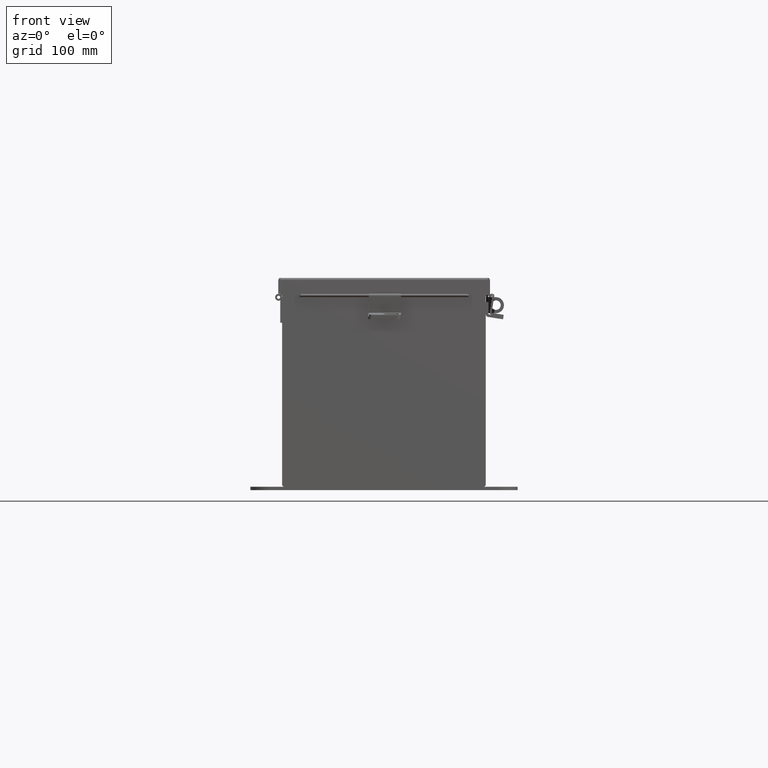
[diagram: clean part render]
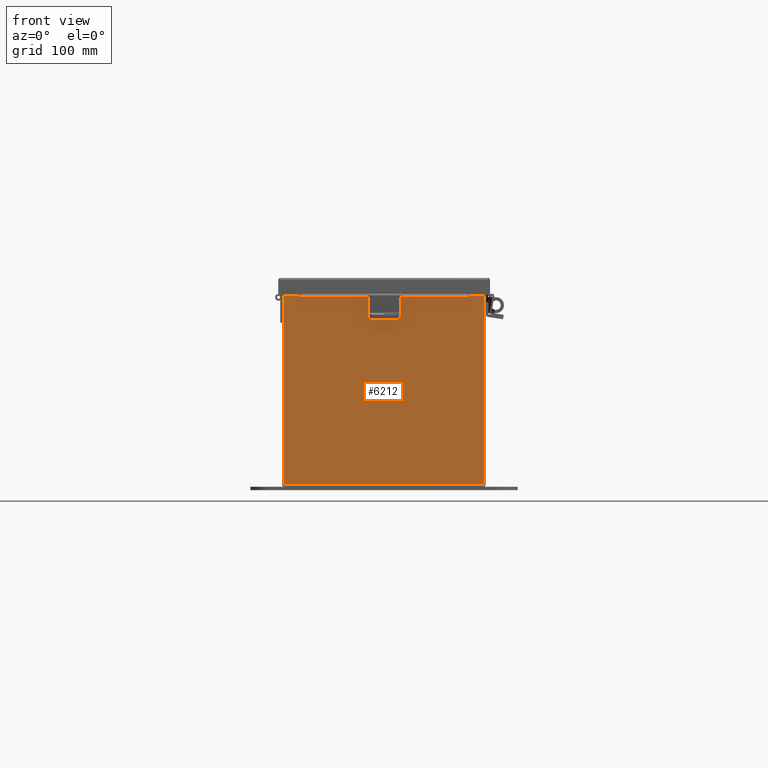
[diagram: same view with one face highlighted and labeled with its STEP entity id]
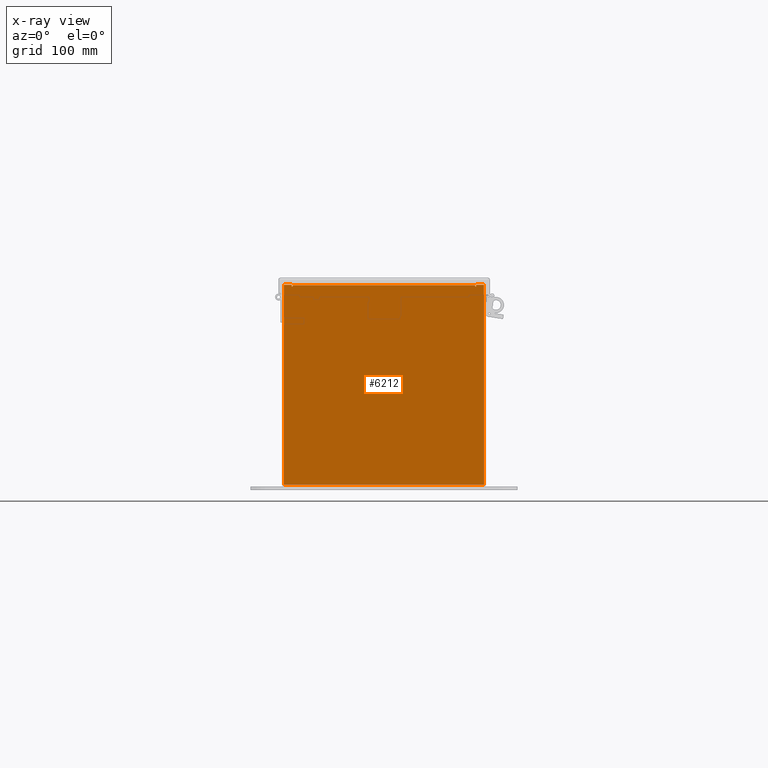
[diagram: x-ray of the same camera — body ghosted, the highlighted face saturated]
A machine part, front view. The second image highlights one B-rep face of the part: STEP entity #6212.
The next image is the same camera in x-ray: the body ghosted, the highlighted face saturated — about 0% of this face is hidden behind the body in this view.
In plain terms, the highlighted planar face has unit normal (-0, 1, -0).
Its self-contained STEP definition (entity closure, byte-faithful):
#259 = CARTESIAN_POINT ( 'NONE',  ( 3.925299999999996900, 0.0000000000000000000, -3.925299999999986700 ) ) ;
#387 = CARTESIAN_POINT ( 'NONE',  ( -3.582299999999989400, 0.0000000000000000000, 3.874949999999998300 ) ) ;
#931 = DIRECTION ( 'NONE',  ( 1.000000000000000000, 1.477079791840433000E-030, -0.0000000000000000000 ) ) ;
#1100 = ORIENTED_EDGE ( 'NONE', *, *, #13232, .T. ) ;
#1501 = DIRECTION ( 'NONE',  ( 1.477079791840433000E-030, 1.000000000000000000, -0.0000000000000000000 ) ) ;
#1957 = ORIENTED_EDGE ( 'NONE', *, *, #3026, .F. ) ;
#1984 = CARTESIAN_POINT ( 'NONE',  ( 3.582299999999996900, 0.0000000000000000000, 3.912299999999998800 ) ) ;
#2587 = VERTEX_POINT ( 'NONE', #20376 ) ;
#2649 = EDGE_CURVE ( 'NONE', #18350, #6282, #9252, .T. ) ;
#2871 = VERTEX_POINT ( 'NONE', #3181 ) ;
#2982 = DIRECTION ( 'NONE',  ( 0.0000000000000000000, 0.0000000000000000000, 1.000000000000000000 ) ) ;
#3026 = EDGE_CURVE ( 'NONE', #17498, #6600, #20576, .T. ) ;
#3055 = DIRECTION ( 'NONE',  ( 0.0000000000000000000, 0.0000000000000000000, 1.000000000000000000 ) ) ;
#3154 = LINE ( 'NONE', #19100, #9426 ) ;
#3181 = CARTESIAN_POINT ( 'NONE',  ( 3.925299999999996900, 0.0000000000000000000, 3.925299999999999600 ) ) ;
#3209 = ORIENTED_EDGE ( 'NONE', *, *, #4645, .F. ) ;
#3486 = CARTESIAN_POINT ( 'NONE',  ( -3.582300000000002300, 0.0000000000000000000, 0.0000000000000000000 ) ) ;
#3599 = CARTESIAN_POINT ( 'NONE',  ( -3.619650000000002300, 0.0000000000000000000, 3.925299999999999600 ) ) ;
#3700 = VERTEX_POINT ( 'NONE', #3599 ) ;
#4571 = CARTESIAN_POINT ( 'NONE',  ( -3.925300000000002700, 0.0000000000000000000, 3.925300000000000900 ) ) ;
#4645 = EDGE_CURVE ( 'NONE', #6600, #15451, #11816, .T. ) ;
#4977 = DIRECTION ( 'NONE',  ( 1.477079791840433000E-030, 1.000000000000000000, -0.0000000000000000000 ) ) ;
#5058 = ORIENTED_EDGE ( 'NONE', *, *, #2649, .T. ) ;
#5100 = EDGE_CURVE ( 'NONE', #20777, #5303, #22494, .T. ) ;
#5303 = VERTEX_POINT ( 'NONE', #19384 ) ;
#5400 = DIRECTION ( 'NONE',  ( -1.477079791840433000E-030, -1.000000000000000000, -0.0000000000000000000 ) ) ;
#5619 = CARTESIAN_POINT ( 'NONE',  ( 3.619650000000010200, 0.0000000000000000000, 3.874949999999999700 ) ) ;
#5748 = EDGE_CURVE ( 'NONE', #9156, #18350, #20648, .T. ) ;
#5824 = ORIENTED_EDGE ( 'NONE', *, *, #8067, .T. ) ;
#6212 = ADVANCED_FACE ( 'NONE', ( #16132 ), #20032, .F. ) ;
#6238 = DIRECTION ( 'NONE',  ( -2.170286390199978800E-014, -2.366582715663035400E-030, -1.000000000000000000 ) ) ;
#6282 = VERTEX_POINT ( 'NONE', #17332 ) ;
#6319 = CARTESIAN_POINT ( 'NONE',  ( -3.925300000000002700, 0.0000000000000000000, 3.925300000000000900 ) ) ;
#6464 = LINE ( 'NONE', #13924, #14012 ) ;
#6469 = ORIENTED_EDGE ( 'NONE', *, *, #7175, .F. ) ;
#6592 = DIRECTION ( 'NONE',  ( 0.0000000000000000000, 0.0000000000000000000, -1.000000000000000000 ) ) ;
#6600 = VERTEX_POINT ( 'NONE', #13343 ) ;
#6870 = ORIENTED_EDGE ( 'NONE', *, *, #5100, .F. ) ;
#7031 = CARTESIAN_POINT ( 'NONE',  ( 3.582299999999996900, 0.0000000000000000000, 1.311287036958846300E-014 ) ) ;
#7175 = EDGE_CURVE ( 'NONE', #14768, #17498, #10077, .T. ) ;
#7917 = VECTOR ( 'NONE', #3055, 39.37007874015748100 ) ;
#8067 = EDGE_CURVE ( 'NONE', #6282, #3700, #13505, .T. ) ;
#8270 = DIRECTION ( 'NONE',  ( -1.000000000000000000, -1.477079791840433000E-030, 0.0000000000000000000 ) ) ;
#8354 = LINE ( 'NONE', #3486, #16413 ) ;
#8856 = CARTESIAN_POINT ( 'NONE',  ( 3.619649999999998300, 0.0000000000000000000, 3.925300000000000900 ) ) ;
#9156 = VERTEX_POINT ( 'NONE', #259 ) ;
#9252 = LINE ( 'NONE', #20247, #7917 ) ;
#9426 = VECTOR ( 'NONE', #931, 39.37007874015748100 ) ;
#9815 = DIRECTION ( 'NONE',  ( 1.000000000000000000, 1.477079791840433000E-030, 0.0000000000000000000 ) ) ;
#9971 = CARTESIAN_POINT ( 'NONE',  ( -3.619650000000002300, 0.0000000000000000000, 0.0000000000000000000 ) ) ;
#10077 = LINE ( 'NONE', #14858, #15480 ) ;
#11816 = LINE ( 'NONE', #7031, #21247 ) ;
#12137 = CARTESIAN_POINT ( 'NONE',  ( -3.600974999999989400, 0.0000000000000000000, 3.874949999999998300 ) ) ;
#12799 = LINE ( 'NONE', #6319, #13346 ) ;
#13049 = ORIENTED_EDGE ( 'NONE', *, *, #5748, .T. ) ;
#13131 = LINE ( 'NONE', #9971, #19854 ) ;
#13232 = EDGE_CURVE ( 'NONE', #14768, #2871, #12799, .T. ) ;
#13343 = CARTESIAN_POINT ( 'NONE',  ( 3.582300000000009800, 0.0000000000000000000, 3.874949999999999700 ) ) ;
#13346 = VECTOR ( 'NONE', #9815, 39.37007874015748100 ) ;
#13505 = LINE ( 'NONE', #4571, #21841 ) ;
#13924 = CARTESIAN_POINT ( 'NONE',  ( 3.925299999999996900, 0.0000000000000000000, 3.925299999999999600 ) ) ;
#14012 = VECTOR ( 'NONE', #14132, 39.37007874015748100 ) ;
#14111 = CARTESIAN_POINT ( 'NONE',  ( -3.925300000000002700, 0.0000000000000000000, -3.925299999999999600 ) ) ;
#14132 = DIRECTION ( 'NONE',  ( 0.0000000000000000000, 0.0000000000000000000, -1.000000000000000000 ) ) ;
#14358 = DIRECTION ( 'NONE',  ( 0.0000000000000000000, 0.0000000000000000000, -1.000000000000000000 ) ) ;
#14431 = EDGE_CURVE ( 'NONE', #2587, #15451, #3154, .T. ) ;
#14473 = ORIENTED_EDGE ( 'NONE', *, *, #14431, .T. ) ;
#14607 = CARTESIAN_POINT ( 'NONE',  ( 0.0000000000000000000, 0.0000000000000000000, 0.0000000000000000000 ) ) ;
#14768 = VERTEX_POINT ( 'NONE', #8856 ) ;
#14804 = EDGE_CURVE ( 'NONE', #2587, #20777, #8354, .T. ) ;
#14858 = CARTESIAN_POINT ( 'NONE',  ( 3.619649999999913000, 0.0000000000000000000, -6.556435184794231400E-014 ) ) ;
#15147 = ORIENTED_EDGE ( 'NONE', *, *, #21455, .T. ) ;
#15370 = AXIS2_PLACEMENT_3D ( 'NONE', #14607, #5400, #22209 ) ;
#15451 = VERTEX_POINT ( 'NONE', #1984 ) ;
#15480 = VECTOR ( 'NONE', #6238, 39.37007874015748100 ) ;
#16132 = FACE_OUTER_BOUND ( 'NONE', #16302, .T. ) ;
#16203 = DIRECTION ( 'NONE',  ( 0.0000000000000000000, 0.0000000000000000000, 1.000000000000000000 ) ) ;
#16302 = EDGE_LOOP ( 'NONE', ( #19078, #6870, #16323, #14473, #3209, #1957, #6469, #1100, #15147, #13049, #5058, #5824 ) ) ;
#16323 = ORIENTED_EDGE ( 'NONE', *, *, #14804, .F. ) ;
#16413 = VECTOR ( 'NONE', #21098, 39.37007874015748100 ) ;
#16574 = CARTESIAN_POINT ( 'NONE',  ( -3.925300000000002700, 0.0000000000000000000, -3.925299999999999600 ) ) ;
#17332 = CARTESIAN_POINT ( 'NONE',  ( -3.925300000000002700, 0.0000000000000000000, 3.925300000000000900 ) ) ;
#17498 = VERTEX_POINT ( 'NONE', #5619 ) ;
#17664 = CARTESIAN_POINT ( 'NONE',  ( 3.600975000000010300, 0.0000000000000000000, 3.874949999999999700 ) ) ;
#18350 = VERTEX_POINT ( 'NONE', #16574 ) ;
#18413 = VECTOR ( 'NONE', #8270, 39.37007874015748100 ) ;
#19078 = ORIENTED_EDGE ( 'NONE', *, *, #19570, .F. ) ;
#19100 = CARTESIAN_POINT ( 'NONE',  ( -3.582300000000002300, 0.0000000000000000000, 3.912299999999999700 ) ) ;
#19384 = CARTESIAN_POINT ( 'NONE',  ( -3.619649999999989400, 0.0000000000000000000, 3.874949999999998300 ) ) ;
#19570 = EDGE_CURVE ( 'NONE', #5303, #3700, #13131, .T. ) ;
#19806 = AXIS2_PLACEMENT_3D ( 'NONE', #12137, #4977, #14358 ) ;
#19854 = VECTOR ( 'NONE', #2982, 39.37007874015748100 ) ;
#19867 = AXIS2_PLACEMENT_3D ( 'NONE', #17664, #1501, #6592 ) ;
#20032 = PLANE ( 'NONE',  #15370 ) ;
#20247 = CARTESIAN_POINT ( 'NONE',  ( -3.925300000000002700, 0.0000000000000000000, 3.925300000000000900 ) ) ;
#20376 = CARTESIAN_POINT ( 'NONE',  ( -3.582300000000002300, 0.0000000000000000000, 3.912299999999999700 ) ) ;
#20576 = CIRCLE ( 'NONE', #19867, 0.01867500000000003900 ) ;
#20648 = LINE ( 'NONE', #14111, #18413 ) ;
#20777 = VERTEX_POINT ( 'NONE', #387 ) ;
#21098 = DIRECTION ( 'NONE',  ( 0.0000000000000000000, 0.0000000000000000000, -1.000000000000000000 ) ) ;
#21247 = VECTOR ( 'NONE', #16203, 39.37007874015748100 ) ;
#21455 = EDGE_CURVE ( 'NONE', #2871, #9156, #6464, .T. ) ;
#21841 = VECTOR ( 'NONE', #21934, 39.37007874015748100 ) ;
#21934 = DIRECTION ( 'NONE',  ( 1.000000000000000000, 1.477079791840433000E-030, 0.0000000000000000000 ) ) ;
#22209 = DIRECTION ( 'NONE',  ( 0.0000000000000000000, 0.0000000000000000000, -1.000000000000000000 ) ) ;
#22494 = CIRCLE ( 'NONE', #19806, 0.01867500000000003900 ) ;